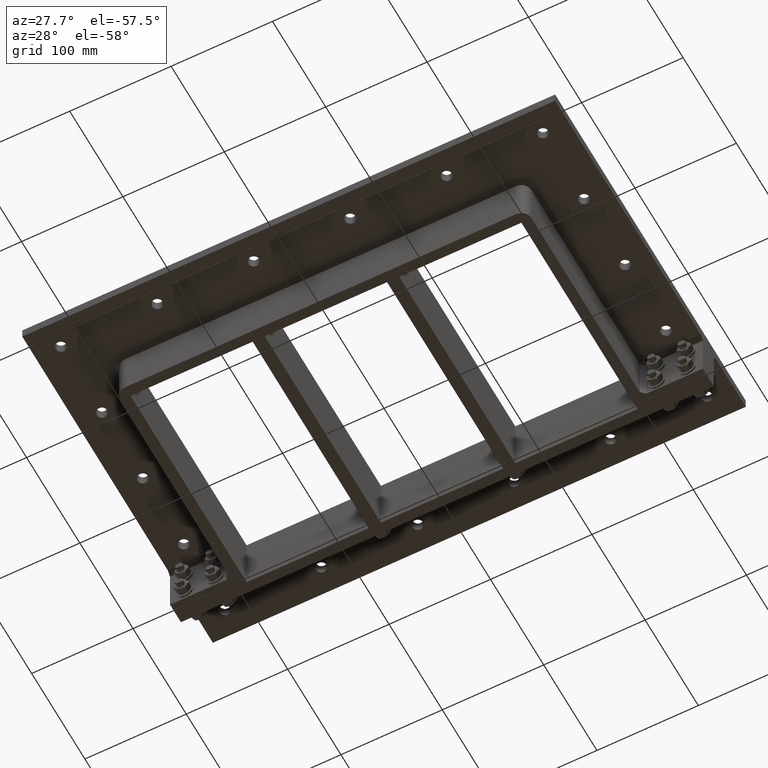
[diagram: clean part render]
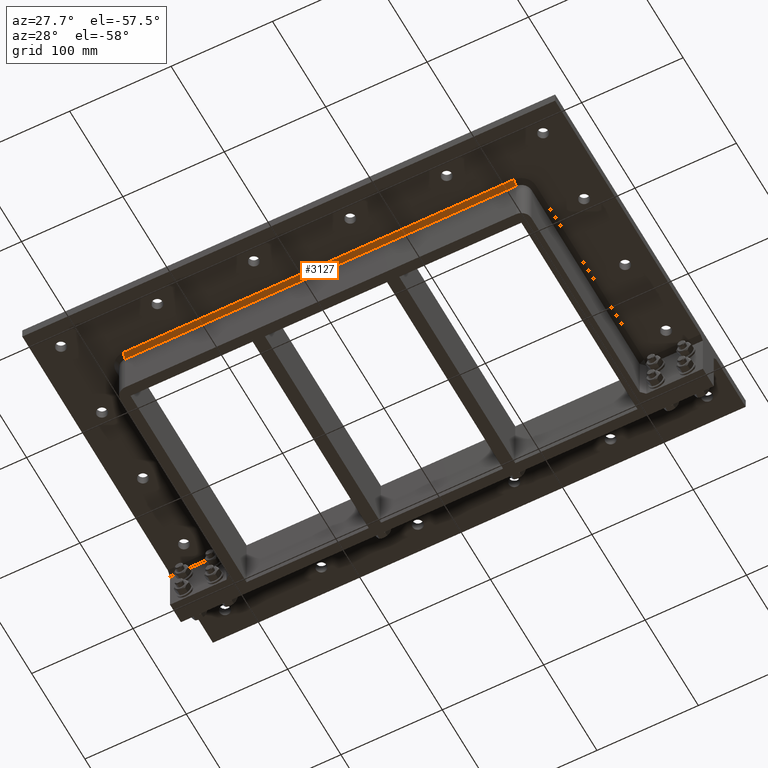
[diagram: same view with one face highlighted and labeled with its STEP entity id]
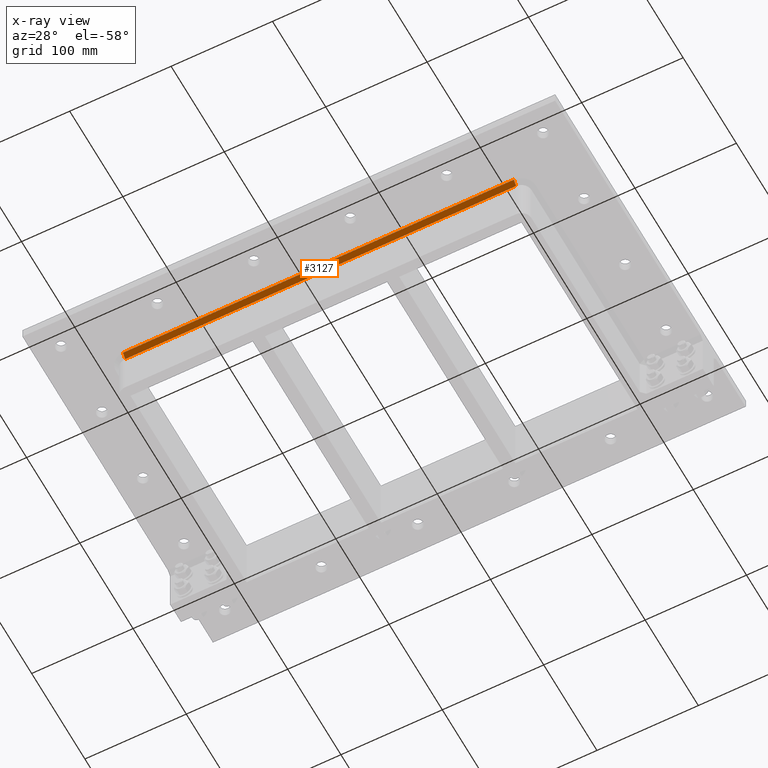
[diagram: x-ray of the same camera — body ghosted, the highlighted face saturated]
A machine part, auxiliary view. The second image highlights one B-rep face of the part: STEP entity #3127.
The next image is the same camera in x-ray: the body ghosted, the highlighted face saturated — about 0% of this face is hidden behind the body in this view.
In plain terms, the highlighted planar face has unit normal (0, -0.7071, -0.7071).
Its self-contained STEP definition (entity closure, byte-faithful):
#534=FACE_OUTER_BOUND('',#709,.T.);
#709=EDGE_LOOP('',(#2201,#2202,#2203,#2204));
#1001=LINE('',#4863,#1246);
#1002=LINE('',#4869,#1247);
#1003=LINE('',#4870,#1248);
#1004=LINE('',#4871,#1249);
#1246=VECTOR('',#3898,10.);
#1247=VECTOR('',#3905,10.);
#1248=VECTOR('',#3906,10.);
#1249=VECTOR('',#3907,10.);
#1488=VERTEX_POINT('',#4861);
#1489=VERTEX_POINT('',#4862);
#1490=VERTEX_POINT('',#4867);
#1491=VERTEX_POINT('',#4868);
#1768=EDGE_CURVE('',#1488,#1489,#1001,.T.);
#1771=EDGE_CURVE('',#1490,#1491,#1002,.T.);
#1772=EDGE_CURVE('',#1491,#1489,#1003,.T.);
#1773=EDGE_CURVE('',#1488,#1490,#1004,.T.);
#2201=ORIENTED_EDGE('',*,*,#1771,.T.);
#2202=ORIENTED_EDGE('',*,*,#1772,.T.);
#2203=ORIENTED_EDGE('',*,*,#1768,.F.);
#2204=ORIENTED_EDGE('',*,*,#1773,.T.);
#3036=PLANE('',#3520);
#3127=ADVANCED_FACE('',(#534),#3036,.T.);
#3520=AXIS2_PLACEMENT_3D('',#4866,#3903,#3904);
#3898=DIRECTION('',(0.,0.707106781186547,-0.707106781186548));
#3903=DIRECTION('center_axis',(0.,-0.707106781186548,-0.707106781186547));
#3904=DIRECTION('ref_axis',(-1.,0.,0.));
#3905=DIRECTION('',(0.,0.707106781186547,-0.707106781186548));
#3906=DIRECTION('',(1.,0.,0.));
#3907=DIRECTION('',(-1.,0.,0.));
#4861=CARTESIAN_POINT('',(192.75,-123.3,-10.));
#4862=CARTESIAN_POINT('',(192.75,-119.,-14.3));
#4863=CARTESIAN_POINT('',(192.75,-123.3,-10.));
#4866=CARTESIAN_POINT('Origin',(96.375,-121.15,-12.15));
#4867=CARTESIAN_POINT('',(-192.75,-123.3,-10.));
#4868=CARTESIAN_POINT('',(-192.75,-119.,-14.3));
#4869=CARTESIAN_POINT('',(-192.75,-123.3,-10.));
#4870=CARTESIAN_POINT('',(96.375,-119.,-14.3));
#4871=CARTESIAN_POINT('',(96.375,-123.3,-10.));